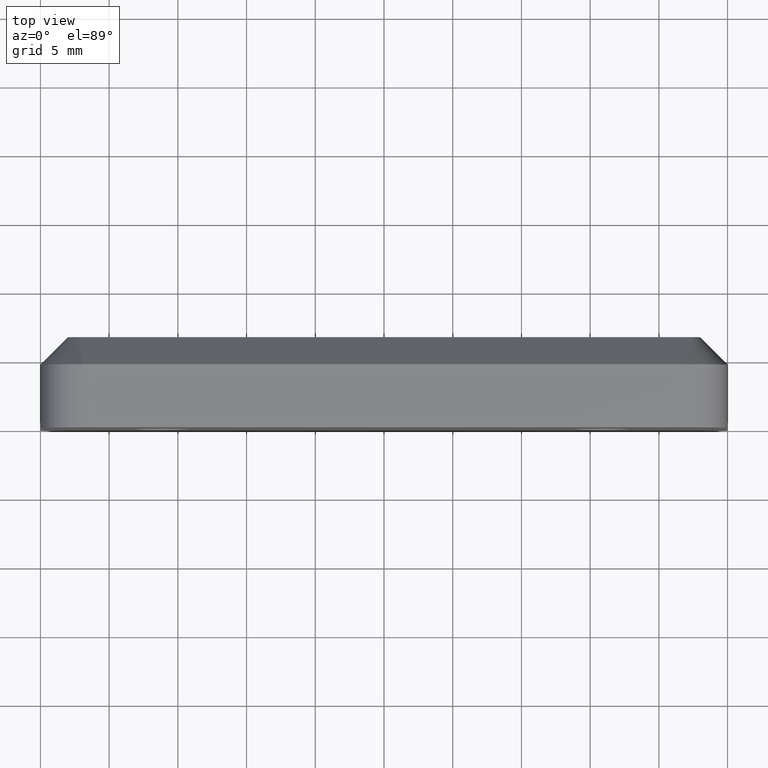
[diagram: clean part render]
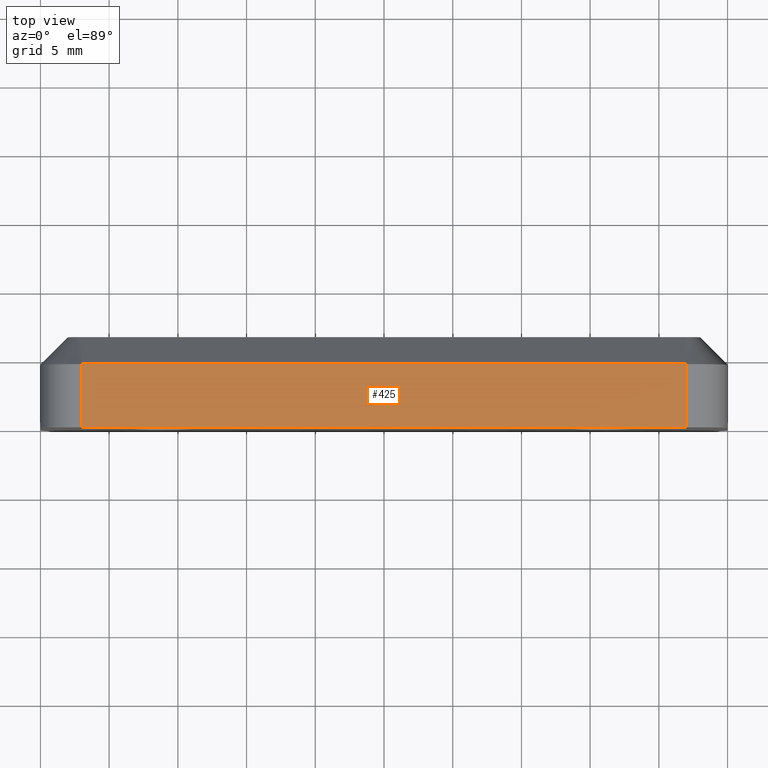
[diagram: same view with one face highlighted and labeled with its STEP entity id]
A machine part, top view. The second image highlights one B-rep face of the part: STEP entity #425.
In plain terms, the highlighted planar face has unit normal (0, 0, -1).
Its self-contained STEP definition (entity closure, byte-faithful):
#69=FACE_OUTER_BOUND('',#105,.T.);
#105=EDGE_LOOP('',(#332,#333,#334,#335));
#158=LINE('',#662,#186);
#167=LINE('',#713,#195);
#168=LINE('',#715,#196);
#169=LINE('',#716,#197);
#186=VECTOR('',#516,44.);
#195=VECTOR('',#567,4.59999999999999);
#196=VECTOR('',#568,44.);
#197=VECTOR('',#569,4.59999999999999);
#216=VERTEX_POINT('',#659);
#217=VERTEX_POINT('',#661);
#238=VERTEX_POINT('',#712);
#239=VERTEX_POINT('',#714);
#252=EDGE_CURVE('',#217,#216,#158,.T.);
#275=EDGE_CURVE('',#216,#238,#167,.T.);
#276=EDGE_CURVE('',#238,#239,#168,.T.);
#277=EDGE_CURVE('',#239,#217,#169,.T.);
#332=ORIENTED_EDGE('',*,*,#275,.T.);
#333=ORIENTED_EDGE('',*,*,#276,.T.);
#334=ORIENTED_EDGE('',*,*,#277,.T.);
#335=ORIENTED_EDGE('',*,*,#252,.T.);
#407=PLANE('',#472);
#425=ADVANCED_FACE('',(#69),#407,.F.);
#472=AXIS2_PLACEMENT_3D('',#711,#565,#566);
#516=DIRECTION('',(-1.,0.,0.));
#565=DIRECTION('center_axis',(0.,0.,1.));
#566=DIRECTION('ref_axis',(1.,0.,0.));
#567=DIRECTION('',(0.,1.,0.));
#568=DIRECTION('',(1.,0.,0.));
#569=DIRECTION('',(0.,-1.,0.));
#659=CARTESIAN_POINT('',(-22.,0.,-8.5));
#661=CARTESIAN_POINT('',(22.,0.,-8.5));
#662=CARTESIAN_POINT('',(-25.,0.,-8.5));
#711=CARTESIAN_POINT('Origin',(-25.,6.6,-8.5));
#712=CARTESIAN_POINT('',(-22.,4.59999999999999,-8.5));
#713=CARTESIAN_POINT('',(-22.,6.6,-8.5));
#714=CARTESIAN_POINT('',(22.,4.59999999999999,-8.5));
#715=CARTESIAN_POINT('',(22.,4.59999999999999,-8.5));
#716=CARTESIAN_POINT('',(22.,6.6,-8.5));